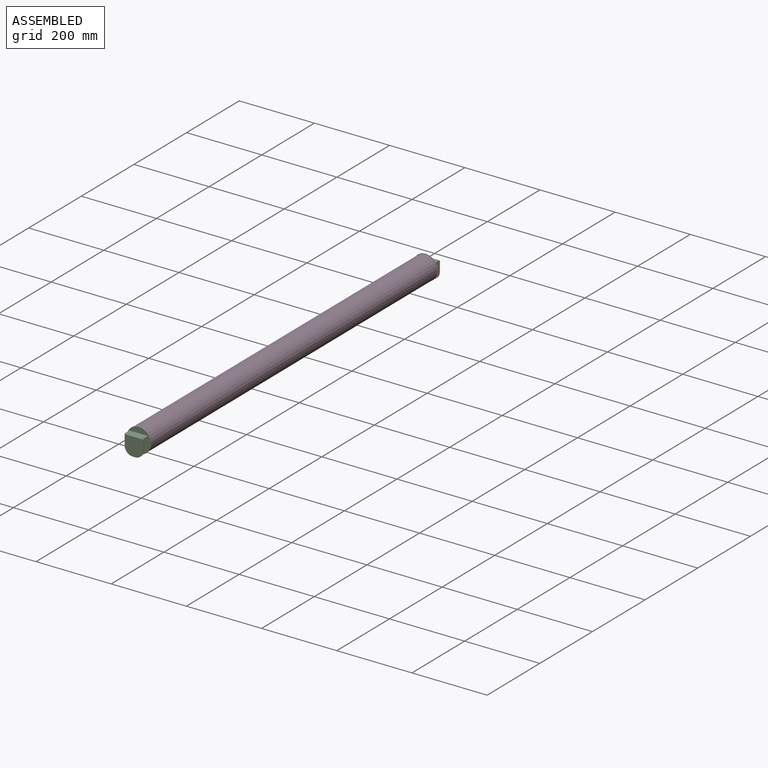
[diagram: assembled view]
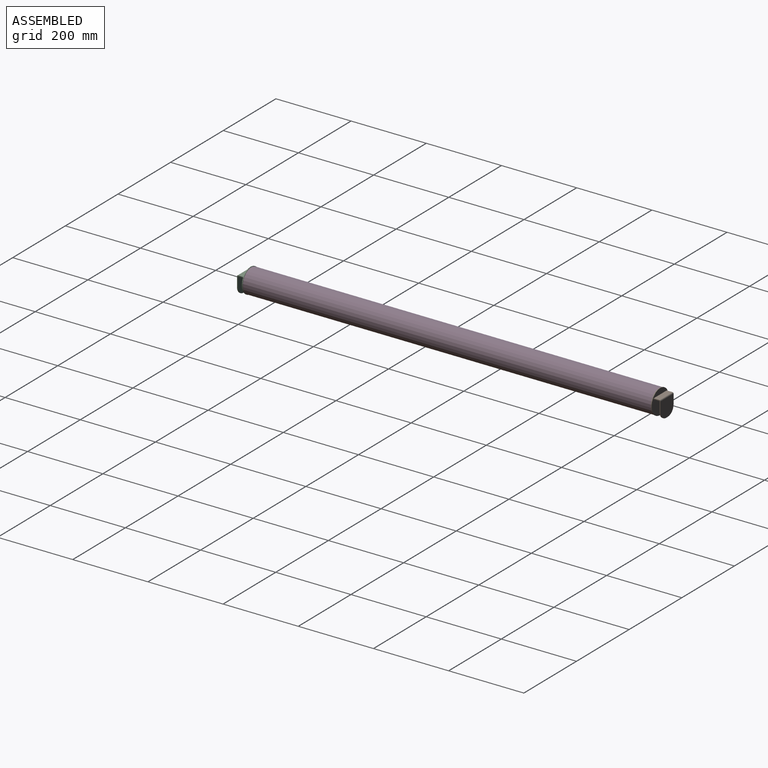
[diagram: assembled view, second angle]
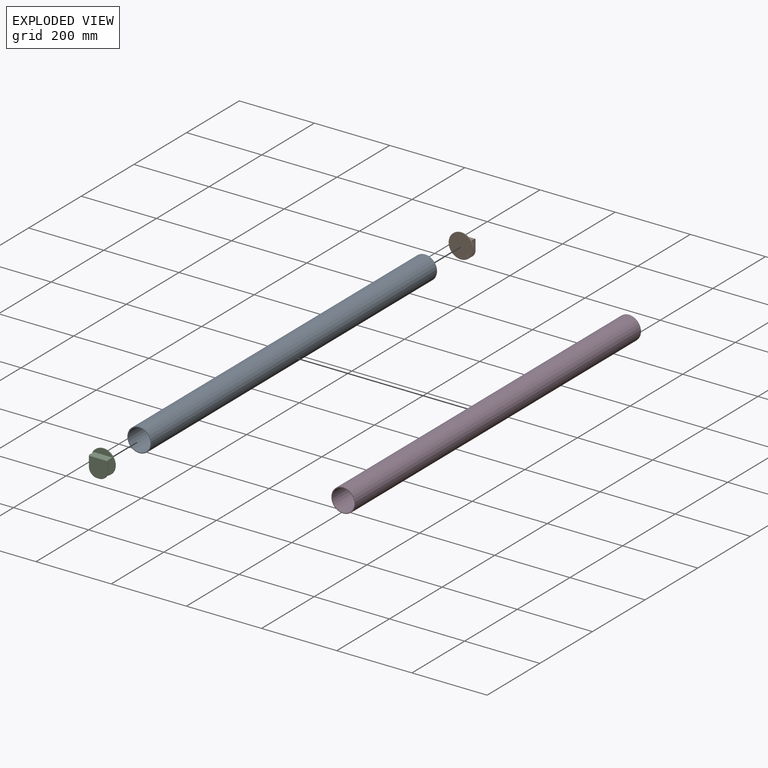
[diagram: exploded view]
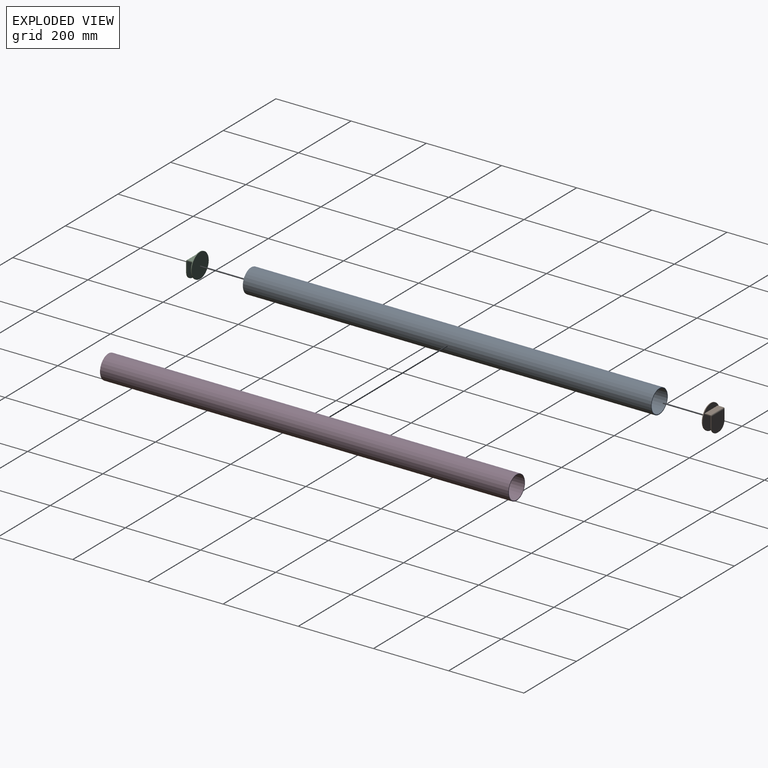
[diagram: exploded view, second angle]
ASSEMBLY  parts=4 mates=2
PART A: 4 faces, bbox 63.5x1086x63.5 mm
  f0: cylinder r=29.75mm len=1086mm, axis (0,1,0), area 203000.3mm2, adj f2,f3
  f1: cylinder r=31.75mm len=1086mm, axis (0,1,0), area 216647.4mm2, adj f2,f3
  f2: plane 63.5x63.5mm, normal (0,-1,0), area 386.4mm2, adj f0,f1
  f3: plane 63.5x63.5mm, normal (0,1,0), area 386.4mm2, adj f0,f1
PART B: 14 faces, bbox 65x20.2x65.5 mm
  f0: cylinder r=32.5mm len=65mm, axis (0,1,0), area 408.4mm2, adj f1,f2
  f1: plane 65x65mm, normal (0,-1,0), area 3209.3mm2, adj f0,f5,f6,f8,f9
  f2: plane 65x65mm, normal (0,1,0), area 3318.3mm2, adj f0
  f3: plane 6x2.18mm, normal (0,0,-1), area 13.1mm2, adj f4,f7,f12,f13
  f4: plane 50x47mm, normal (0,1,0), area 2142.3mm2, adj f3,f8,f9,f11,f12,f13
  f5: plane 50x15mm, normal (0,0,-1), area 750mm2, adj f1,f8,f9,f11
  f6: plane 50x15.18mm, normal (0,0,1), area 759mm2, adj f1,f8,f9,f10
  f7: plane 50x47.18mm, normal (0,-1,0), area 2151.3mm2, adj f3,f8,f9,f10,f12,f13
  f8: plane 28.18x18.18mm, normal (1,0,0), area 94.6mm2, adj f1,f4,f5,f6,f7,f10,f11,f13
  f9: plane 28.18x18.18mm, normal (-1,0,0), area 94.6mm2, adj f1,f4,f5,f6,f7,f10,f11,f12
  f10: cylinder r=3mm len=50mm, axis (-1,0,0), area 235.6mm2, adj f6,f7,f8,f9
  f11: cylinder r=1mm len=50mm, axis (1,0,0), area 78.5mm2, adj f4,f5,f8,f9
  f12: cylinder r=22mm len=22mm, axis (0,1,0), area 75.3mm2, adj f3,f4,f7,f9
  f13: cylinder r=22mm len=22mm, axis (0,-1,0), area 75.3mm2, adj f3,f4,f7,f8
PART C: same geometry as B
PART D: same geometry as A
PLACE A t=(-313.77,240.78,-181.61)mm
PLACE B rot(axis=(0,0,1),180deg) t=(-313.77,240.78,-181.61)mm
PLACE C t=(-313.77,-845.22,-181.61)mm
PLACE D t=(-313.77,240.78,-181.61)mm
MATE fastened B.f0 <-> A.f1  axis (0,-1,0) through (-313.77,240.78,-181.61)mm
MATE fastened C.f0 <-> A.f1  axis (0,1,0) through (-313.77,-845.22,-181.61)mm
